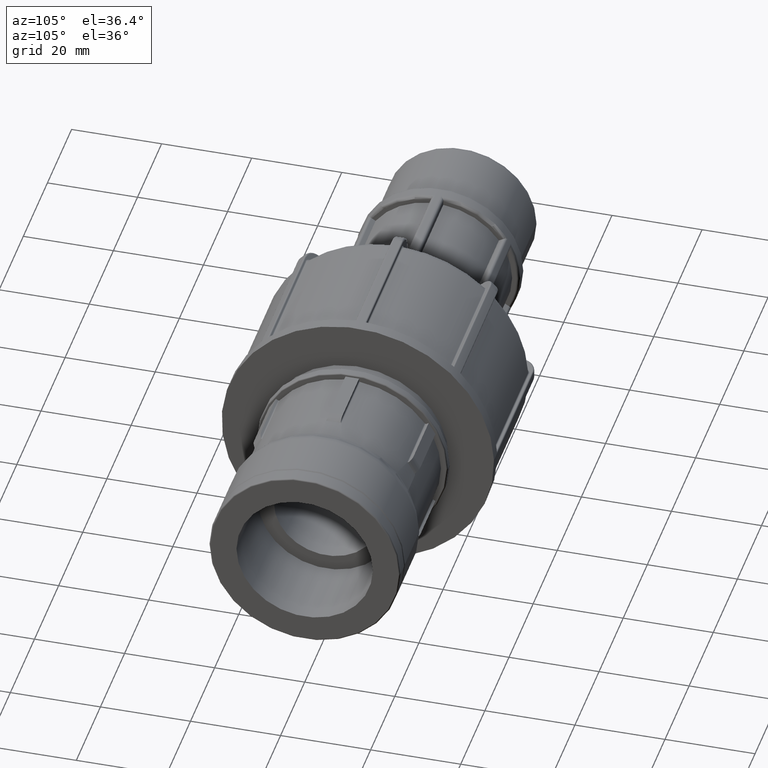
[diagram: clean part render]
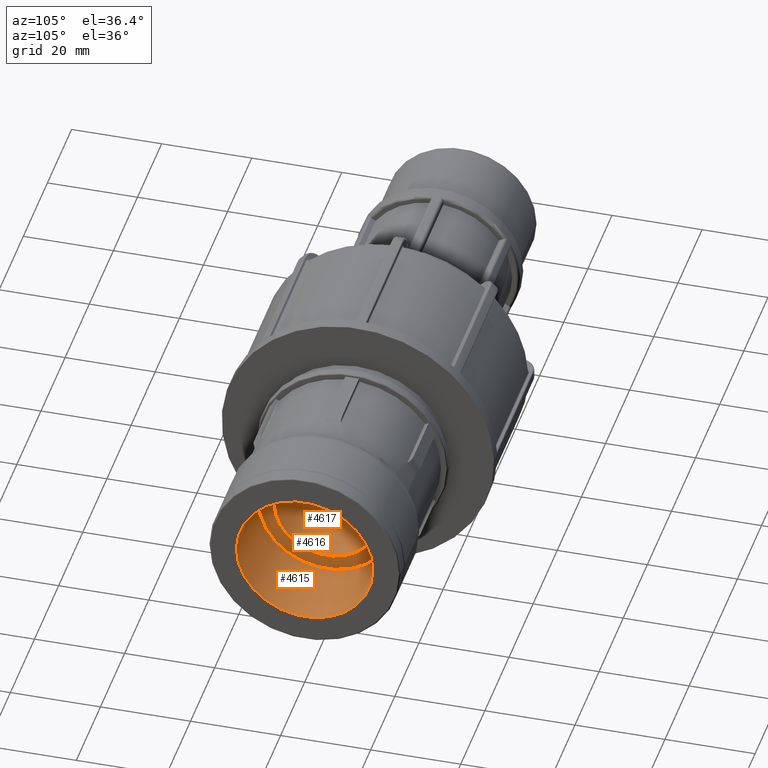
[diagram: same view with one multi-face feature highlighted, each face labeled with its STEP entity id]
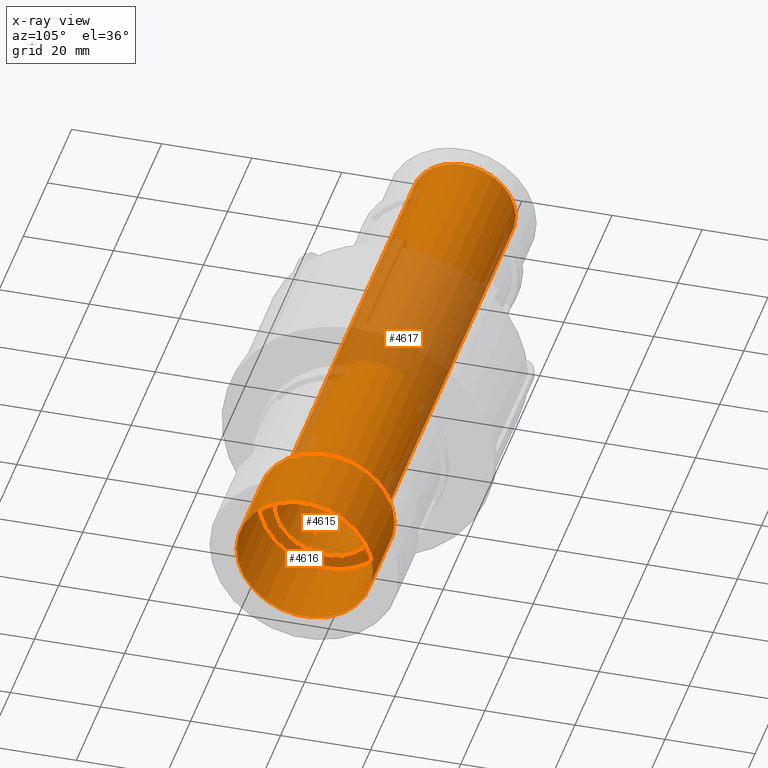
[diagram: x-ray of the same camera — body ghosted, the whole feature saturated]
A machine part, auxiliary view. The highlighted faces form ONE feature: a stepped (counterbored) hole: 2 coaxial cylindrical walls of radii 11.6372 -> 15.1455 mm joined by 1 annular planar shoulder face(s). The faces share edges in the B-rep.
The next image is the same camera in x-ray: the body ghosted and the whole hole feature saturated, so the bore chain is visible through the body.
Their STEP definitions:
[1] entity #4615 (Cylinder):
#74=FACE_BOUND('',#1392,.T.);
#835=CYLINDRICAL_SURFACE('',#5105,15.1455);
#1100=FACE_OUTER_BOUND('',#1391,.T.);
#1391=EDGE_LOOP('',(#4308));
#1392=EDGE_LOOP('',(#4309));
#1626=CIRCLE('',#4767,15.1455);
#1809=CIRCLE('',#5106,15.1455);
#1981=VERTEX_POINT('',#7275);
#2260=VERTEX_POINT('',#9508);
#2493=EDGE_CURVE('',#1981,#1981,#1626,.T.);
#2947=EDGE_CURVE('',#2260,#2260,#1809,.T.);
#4308=ORIENTED_EDGE('',*,*,#2493,.T.);
#4309=ORIENTED_EDGE('',*,*,#2947,.F.);
#4615=ADVANCED_FACE('',(#1100,#74),#835,.F.);
#4767=AXIS2_PLACEMENT_3D('',#7276,#5507,#5508);
#5105=AXIS2_PLACEMENT_3D('',#9507,#6358,#6359);
#5106=AXIS2_PLACEMENT_3D('',#9509,#6360,#6361);
#5507=DIRECTION('center_axis',(1.,0.,0.));
#5508=DIRECTION('ref_axis',(0.,0.,-1.));
#6358=DIRECTION('center_axis',(1.,0.,0.));
#6359=DIRECTION('ref_axis',(0.,1.,0.));
#6360=DIRECTION('center_axis',(1.,0.,0.));
#6361=DIRECTION('ref_axis',(0.,0.,-1.));
#7275=CARTESIAN_POINT('',(0.,15.1455,0.));
#7276=CARTESIAN_POINT('Origin',(0.,0.,0.));
#9507=CARTESIAN_POINT('Origin',(-9.,0.,0.));
#9508=CARTESIAN_POINT('',(-18.,15.1455,0.));
#9509=CARTESIAN_POINT('Origin',(-18.,0.,0.));
[2] entity #4617 (Cylinder):
#76=FACE_BOUND('',#1396,.T.);
#836=CYLINDRICAL_SURFACE('',#5109,11.63715);
#1102=FACE_OUTER_BOUND('',#1395,.T.);
#1395=EDGE_LOOP('',(#4312));
#1396=EDGE_LOOP('',(#4313));
#1807=CIRCLE('',#5099,11.63715);
#1810=CIRCLE('',#5108,11.63715);
#2258=VERTEX_POINT('',#9499);
#2261=VERTEX_POINT('',#9511);
#2945=EDGE_CURVE('',#2258,#2258,#1807,.T.);
#2948=EDGE_CURVE('',#2261,#2261,#1810,.T.);
#4312=ORIENTED_EDGE('',*,*,#2948,.T.);
#4313=ORIENTED_EDGE('',*,*,#2945,.F.);
#4617=ADVANCED_FACE('',(#1102,#76),#836,.F.);
#5099=AXIS2_PLACEMENT_3D('',#9500,#6346,#6347);
#5108=AXIS2_PLACEMENT_3D('',#9512,#6364,#6365);
#5109=AXIS2_PLACEMENT_3D('',#9513,#6366,#6367);
#6346=DIRECTION('center_axis',(1.,0.,0.));
#6347=DIRECTION('ref_axis',(0.,0.,-1.));
#6364=DIRECTION('center_axis',(1.,0.,0.));
#6365=DIRECTION('ref_axis',(0.,0.,-1.));
#6366=DIRECTION('center_axis',(1.,0.,0.));
#6367=DIRECTION('ref_axis',(0.,1.,0.));
#9499=CARTESIAN_POINT('',(-131.5,11.63715,0.));
#9500=CARTESIAN_POINT('Origin',(-131.5,0.,0.));
#9511=CARTESIAN_POINT('',(-18.,11.63715,0.));
#9512=CARTESIAN_POINT('Origin',(-18.,0.,0.));
#9513=CARTESIAN_POINT('Origin',(-74.75,0.,0.));
[3] entity #4616 (Plane):
#75=FACE_BOUND('',#1394,.T.);
#154=PLANE('',#5107);
#1101=FACE_OUTER_BOUND('',#1393,.T.);
#1393=EDGE_LOOP('',(#4310));
#1394=EDGE_LOOP('',(#4311));
#1809=CIRCLE('',#5106,15.1455);
#1810=CIRCLE('',#5108,11.63715);
#2260=VERTEX_POINT('',#9508);
#2261=VERTEX_POINT('',#9511);
#2947=EDGE_CURVE('',#2260,#2260,#1809,.T.);
#2948=EDGE_CURVE('',#2261,#2261,#1810,.T.);
#4310=ORIENTED_EDGE('',*,*,#2947,.T.);
#4311=ORIENTED_EDGE('',*,*,#2948,.F.);
#4616=ADVANCED_FACE('',(#1101,#75),#154,.T.);
#5106=AXIS2_PLACEMENT_3D('',#9509,#6360,#6361);
#5107=AXIS2_PLACEMENT_3D('',#9510,#6362,#6363);
#5108=AXIS2_PLACEMENT_3D('',#9512,#6364,#6365);
#6360=DIRECTION('center_axis',(1.,0.,0.));
#6361=DIRECTION('ref_axis',(0.,0.,-1.));
#6362=DIRECTION('center_axis',(1.,0.,0.));
#6363=DIRECTION('ref_axis',(0.,0.,-1.));
#6364=DIRECTION('center_axis',(1.,0.,0.));
#6365=DIRECTION('ref_axis',(0.,0.,-1.));
#9508=CARTESIAN_POINT('',(-18.,15.1455,0.));
#9509=CARTESIAN_POINT('Origin',(-18.,0.,0.));
#9510=CARTESIAN_POINT('Origin',(-18.,11.63715,0.));
#9511=CARTESIAN_POINT('',(-18.,11.63715,0.));
#9512=CARTESIAN_POINT('Origin',(-18.,0.,0.));